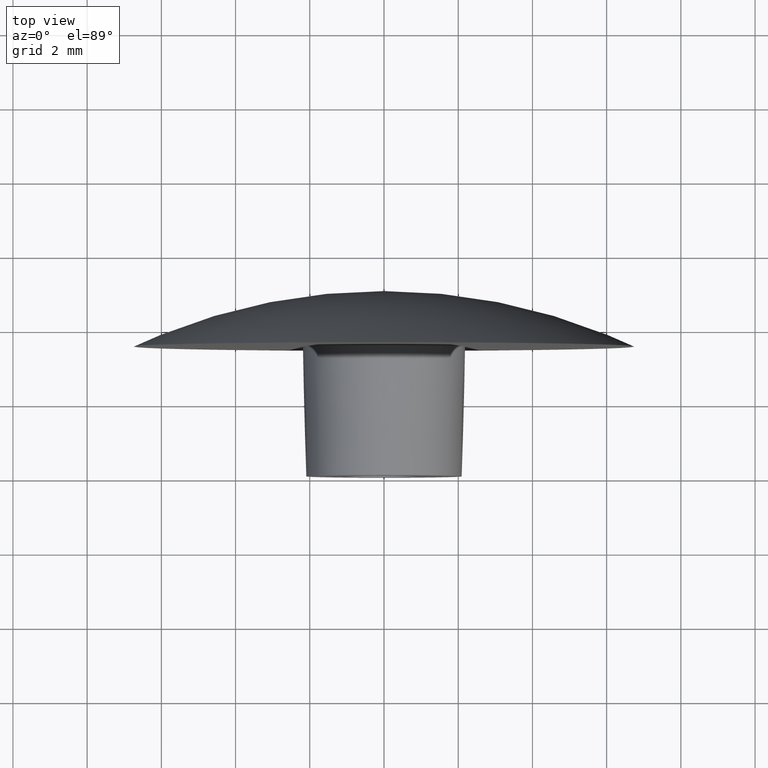
[diagram: clean part render]
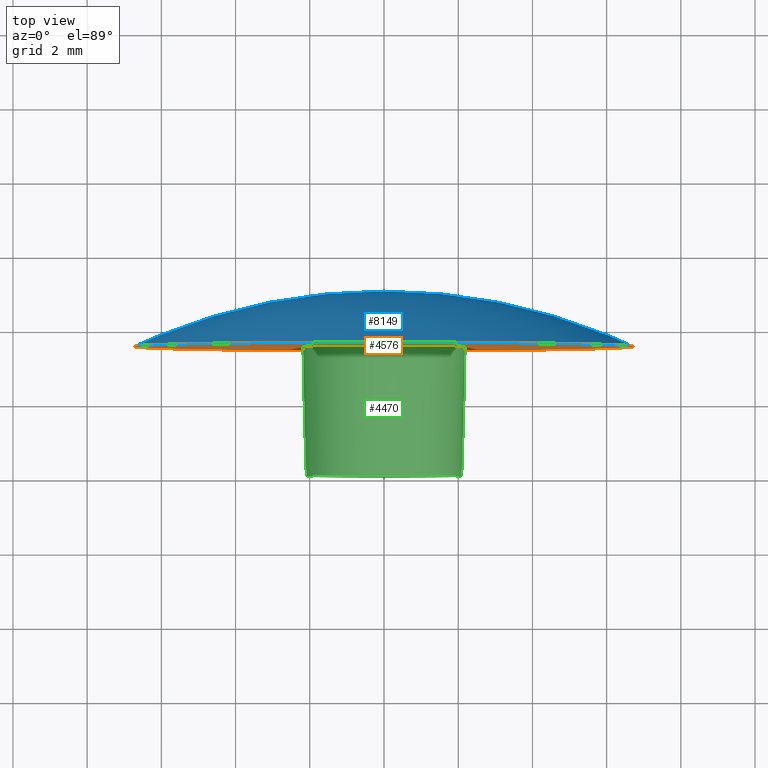
[diagram: same view with three faces highlighted in distinct colors, each labeled with its STEP entity id]
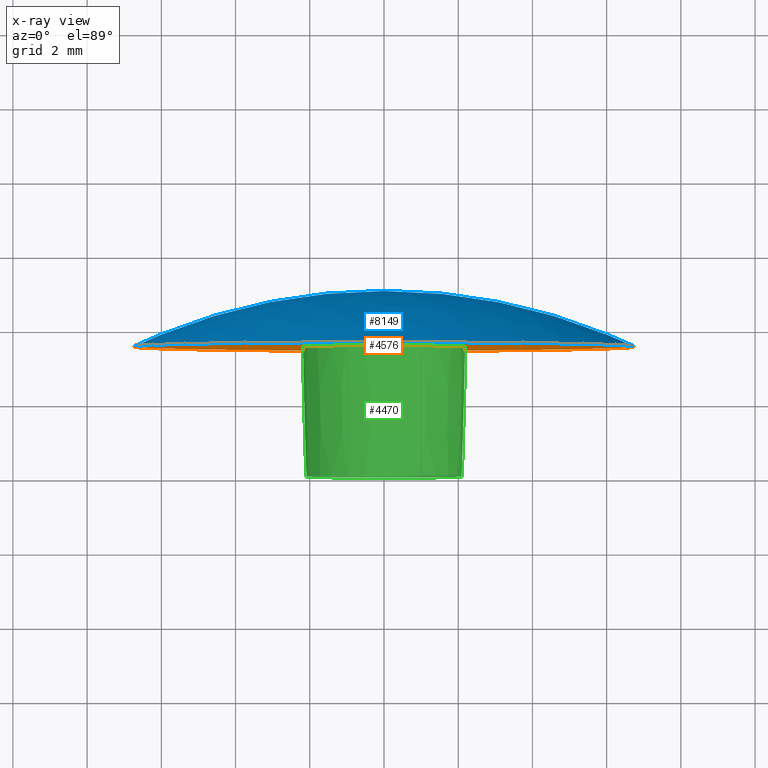
[diagram: x-ray of the same camera — body ghosted, the three highlighted faces saturated]
A machine part, top view with three faces highlighted in distinct colors.
The next image is the same camera in x-ray (body ghosted, the three faces saturated) — at least one of them is partly hidden behind the body in this view.
Their STEP definitions:

[orange] entity #4576 — the highlighted planar face has unit normal (0, -1, -0).
#37 = ORIENTED_EDGE ( 'NONE', *, *, #3078, .T. ) ;
#1309 = AXIS2_PLACEMENT_3D ( 'NONE', #2318, #5965, #4152 ) ;
#1762 = FACE_BOUND ( 'NONE', #7620, .T. ) ;
#1889 = EDGE_LOOP ( 'NONE', ( #37 ) ) ;
#2318 = CARTESIAN_POINT ( 'NONE',  ( 2.199999999999999734, 3.500000000000000444, 0.000000000000000000 ) ) ;
#2352 = AXIS2_PLACEMENT_3D ( 'NONE', #10578, #4338, #3496 ) ;
#2471 = CIRCLE ( 'NONE', #2352, 6.749999999999998224 ) ;
#3078 = EDGE_CURVE ( 'NONE', #3895, #3895, #2471, .T. ) ;
#3422 = FACE_OUTER_BOUND ( 'NONE', #1889, .T. ) ;
#3496 = DIRECTION ( 'NONE',  ( 0.000000000000000000, 0.000000000000000000, -1.000000000000000000 ) ) ;
#3895 = VERTEX_POINT ( 'NONE', #10478 ) ;
#4152 = DIRECTION ( 'NONE',  ( 0.000000000000000000, 0.000000000000000000, -1.000000000000000000 ) ) ;
#4180 = VERTEX_POINT ( 'NONE', #5983 ) ;
#4222 = EDGE_CURVE ( 'NONE', #4180, #4180, #5761, .T. ) ;
#4338 = DIRECTION ( 'NONE',  ( -0.000000000000000000, -1.000000000000000000, -0.000000000000000000 ) ) ;
#4436 = DIRECTION ( 'NONE',  ( 0.000000000000000000, 0.000000000000000000, -1.000000000000000000 ) ) ;
#4576 = ADVANCED_FACE ( 'NONE', ( #3422, #1762 ), #8603, .T. ) ;
#5252 = DIRECTION ( 'NONE',  ( -0.000000000000000000, -1.000000000000000000, -0.000000000000000000 ) ) ;
#5761 = CIRCLE ( 'NONE', #10388, 2.199999999999999734 ) ;
#5965 = DIRECTION ( 'NONE',  ( 0.000000000000000000, -1.000000000000000000, -0.000000000000000000 ) ) ;
#5983 = CARTESIAN_POINT ( 'NONE',  ( 0.000000000000000000, 3.500000000000000000, -2.199999999999999734 ) ) ;
#6185 = CARTESIAN_POINT ( 'NONE',  ( 0.000000000000000000, 3.500000000000000000, 0.000000000000000000 ) ) ;
#7620 = EDGE_LOOP ( 'NONE', ( #7995 ) ) ;
#7995 = ORIENTED_EDGE ( 'NONE', *, *, #4222, .F. ) ;
#8603 = PLANE ( 'NONE',  #1309 ) ;
#10388 = AXIS2_PLACEMENT_3D ( 'NONE', #6185, #5252, #4436 ) ;
#10478 = CARTESIAN_POINT ( 'NONE',  ( 0.000000000000000000, 3.500000000000001332, -6.749999999999998224 ) ) ;
#10578 = CARTESIAN_POINT ( 'NONE',  ( 0.000000000000000000, 3.500000000000001332, 0.000000000000000000 ) ) ;

[blue] entity #8149 — the highlighted spherical surface has radius 15.9375 mm.
#156 = DIRECTION ( 'NONE',  ( 1.000000000000000000, 0.000000000000000000, 0.000000000000000000 ) ) ;
#2352 = AXIS2_PLACEMENT_3D ( 'NONE', #10578, #4338, #3496 ) ;
#2471 = CIRCLE ( 'NONE', #2352, 6.749999999999998224 ) ;
#3078 = EDGE_CURVE ( 'NONE', #3895, #3895, #2471, .T. ) ;
#3496 = DIRECTION ( 'NONE',  ( 0.000000000000000000, 0.000000000000000000, -1.000000000000000000 ) ) ;
#3895 = VERTEX_POINT ( 'NONE', #10478 ) ;
#4338 = DIRECTION ( 'NONE',  ( -0.000000000000000000, -1.000000000000000000, -0.000000000000000000 ) ) ;
#4506 = CARTESIAN_POINT ( 'NONE',  ( 0.000000000000000000, -10.93750000000000178, 0.000000000000000000 ) ) ;
#4760 = ORIENTED_EDGE ( 'NONE', *, *, #3078, .F. ) ;
#5729 = EDGE_LOOP ( 'NONE', ( #4760 ) ) ;
#7230 = DIRECTION ( 'NONE',  ( 0.000000000000000000, 0.000000000000000000, 1.000000000000000000 ) ) ;
#8149 = ADVANCED_FACE ( 'NONE', ( #10547 ), #9443, .T. ) ;
#8691 = AXIS2_PLACEMENT_3D ( 'NONE', #4506, #7230, #156 ) ;
#9443 = SPHERICAL_SURFACE ( 'NONE', #8691, 15.93750000000000000 ) ;
#10478 = CARTESIAN_POINT ( 'NONE',  ( 0.000000000000000000, 3.500000000000001332, -6.749999999999998224 ) ) ;
#10547 = FACE_OUTER_BOUND ( 'NONE', #5729, .T. ) ;
#10578 = CARTESIAN_POINT ( 'NONE',  ( 0.000000000000000000, 3.500000000000001332, 0.000000000000000000 ) ) ;

[green] entity #4470 — the highlighted conical surface has half-angle 1.5 deg.
#157 = DIRECTION ( 'NONE',  ( 0.000000000000000000, 0.000000000000000000, -1.000000000000000000 ) ) ;
#178 = EDGE_LOOP ( 'NONE', ( #6513 ) ) ;
#2036 = FACE_BOUND ( 'NONE', #4646, .T. ) ;
#2935 = AXIS2_PLACEMENT_3D ( 'NONE', #4763, #8305, #5707 ) ;
#3938 = CIRCLE ( 'NONE', #9517, 2.108349274507870685 ) ;
#4180 = VERTEX_POINT ( 'NONE', #5983 ) ;
#4222 = EDGE_CURVE ( 'NONE', #4180, #4180, #5761, .T. ) ;
#4436 = DIRECTION ( 'NONE',  ( 0.000000000000000000, 0.000000000000000000, -1.000000000000000000 ) ) ;
#4470 = ADVANCED_FACE ( 'NONE', ( #4648, #2036 ), #6038, .T. ) ;
#4545 = CARTESIAN_POINT ( 'NONE',  ( 0.000000000000000000, 0.000000000000000000, 0.000000000000000000 ) ) ;
#4646 = EDGE_LOOP ( 'NONE', ( #8825 ) ) ;
#4648 = FACE_OUTER_BOUND ( 'NONE', #178, .T. ) ;
#4763 = CARTESIAN_POINT ( 'NONE',  ( 0.000000000000000000, 0.000000000000000000, 0.000000000000000000 ) ) ;
#5170 = EDGE_CURVE ( 'NONE', #8307, #8307, #3938, .T. ) ;
#5252 = DIRECTION ( 'NONE',  ( -0.000000000000000000, -1.000000000000000000, -0.000000000000000000 ) ) ;
#5449 = DIRECTION ( 'NONE',  ( -0.000000000000000000, -1.000000000000000000, -0.000000000000000000 ) ) ;
#5707 = DIRECTION ( 'NONE',  ( 0.000000000000000000, 0.000000000000000000, 1.000000000000000000 ) ) ;
#5761 = CIRCLE ( 'NONE', #10388, 2.199999999999999734 ) ;
#5983 = CARTESIAN_POINT ( 'NONE',  ( 0.000000000000000000, 3.500000000000000000, -2.199999999999999734 ) ) ;
#6038 = CONICAL_SURFACE ( 'NONE', #2935, 2.108349274507870685, 0.02617993877990773890 ) ;
#6185 = CARTESIAN_POINT ( 'NONE',  ( 0.000000000000000000, 3.500000000000000000, 0.000000000000000000 ) ) ;
#6513 = ORIENTED_EDGE ( 'NONE', *, *, #4222, .T. ) ;
#7895 = CARTESIAN_POINT ( 'NONE',  ( 0.000000000000000000, 0.000000000000000000, -2.108349274507870685 ) ) ;
#8305 = DIRECTION ( 'NONE',  ( 0.000000000000000000, 1.000000000000000000, 0.000000000000000000 ) ) ;
#8307 = VERTEX_POINT ( 'NONE', #7895 ) ;
#8825 = ORIENTED_EDGE ( 'NONE', *, *, #5170, .F. ) ;
#9517 = AXIS2_PLACEMENT_3D ( 'NONE', #4545, #5449, #157 ) ;
#10388 = AXIS2_PLACEMENT_3D ( 'NONE', #6185, #5252, #4436 ) ;